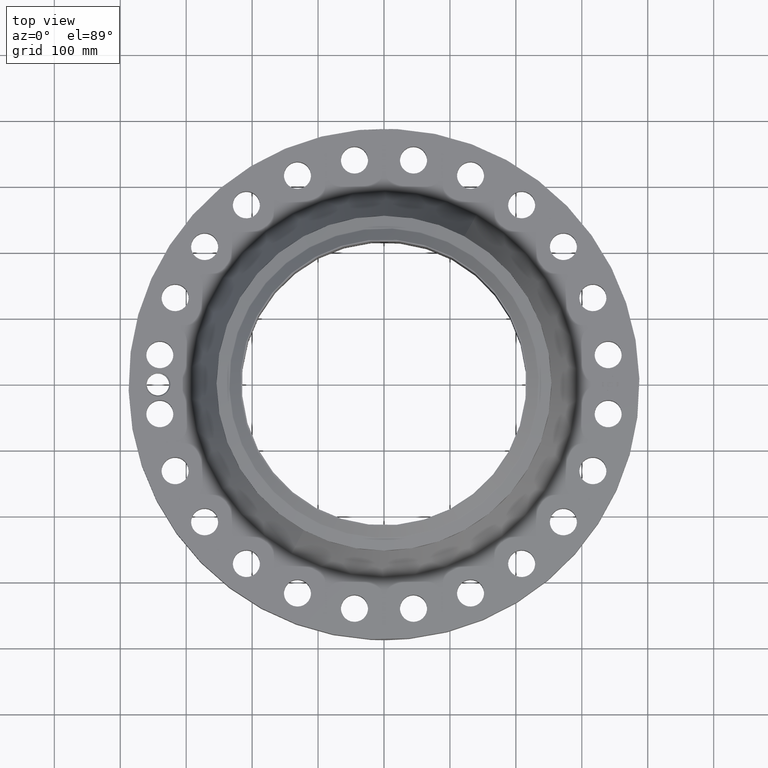
[diagram: clean part render]
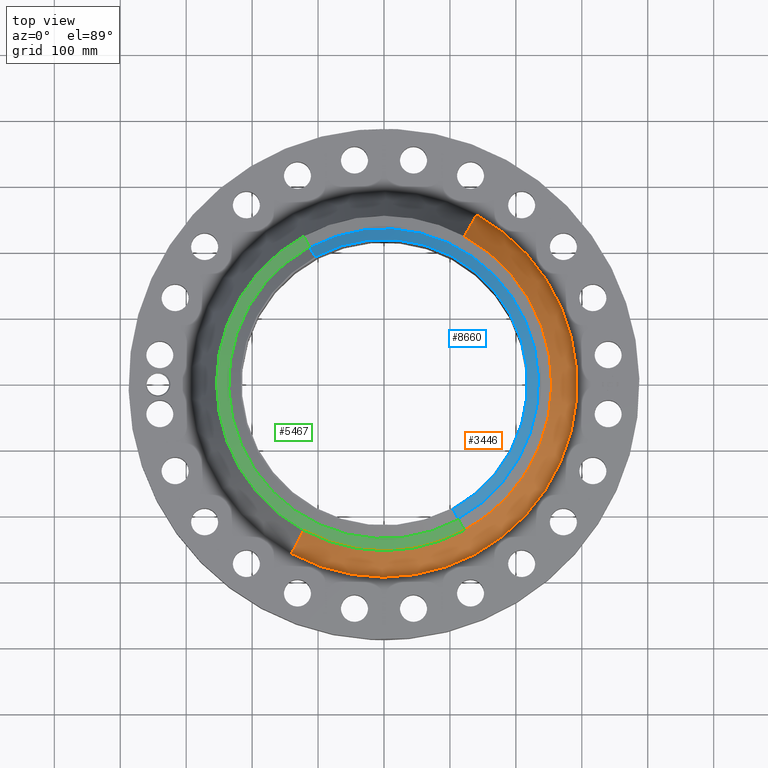
[diagram: same view with three faces highlighted in distinct colors, each labeled with its STEP entity id]
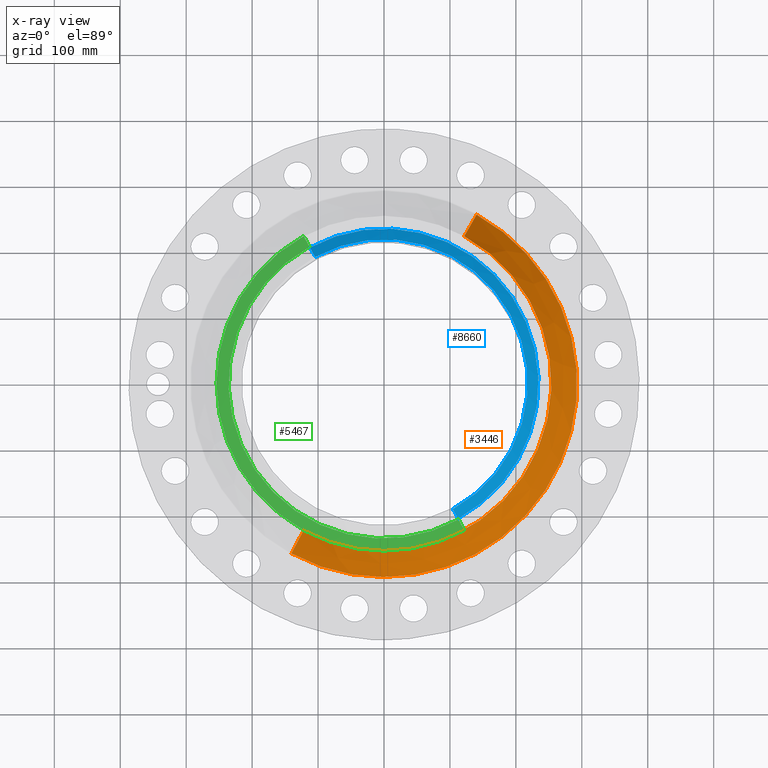
[diagram: x-ray of the same camera — body ghosted, the three highlighted faces saturated]
A machine part, top view with three faces highlighted in distinct colors.
The next image is the same camera in x-ray (body ghosted, the three faces saturated) — at least one of them is partly hidden behind the body in this view.
Their STEP definitions:

[orange] entity #3446 — the highlighted conical surface has half-angle 27.572 deg.
#2798=AXIS2_PLACEMENT_3D('Circle Axis2P3D',#2796,#2797,$) ;
#3419=AXIS2_PLACEMENT_3D('Cone Axis2P3D',#3416,#3417,#3418) ;
#3430=AXIS2_PLACEMENT_3D('Circle Axis2P3D',#3428,#3429,$) ;
#2793=CARTESIAN_POINT('Vertex',(5.52602334711,10.1153178868,3.06445735824)) ;
#2796=CARTESIAN_POINT('Axis2P3D Location',(0.,0.,3.06445735824)) ;
#2800=CARTESIAN_POINT('Vertex',(-5.52602334711,-10.1153178868,3.06445735824)) ;
#3416=CARTESIAN_POINT('Axis2P3D Location',(0.,0.,5.98762188478)) ;
#3421=CARTESIAN_POINT('Line Origine',(5.16013936659,9.44557175286,4.52603962151)) ;
#3425=CARTESIAN_POINT('Vertex',(4.79425538606,8.77582561894,5.98762188478)) ;
#3428=CARTESIAN_POINT('Axis2P3D Location',(0.,0.,5.98762188478)) ;
#3432=CARTESIAN_POINT('Vertex',(-4.79425538606,-8.77582561894,5.98762188478)) ;
#3435=CARTESIAN_POINT('Line Origine',(-5.16013936659,-9.44557175286,4.52603962151)) ;
#2797=DIRECTION('Axis2P3D Direction',(0.,0.,-0.0393700787402)) ;
#3417=DIRECTION('Axis2P3D Direction',(0.,0.,-0.0393700787402)) ;
#3418=DIRECTION('Axis2P3D XDirection',(-0.0188750212049,-0.0345504945626,0.)) ;
#3422=DIRECTION('Vector Direction',(0.00873640451065,0.0159918811887,-0.0348989695017)) ;
#3429=DIRECTION('Axis2P3D Direction',(0.,0.,-0.0393700787402)) ;
#3436=DIRECTION('Vector Direction',(-0.00873640451065,-0.0159918811887,-0.0348989695017)) ;
#3423=VECTOR('Line Direction',#3422,0.0393700787402) ;
#3437=VECTOR('Line Direction',#3436,0.0393700787402) ;
#3441=ORIENTED_EDGE('',*,*,#2802,.F.) ;
#3442=ORIENTED_EDGE('',*,*,#3427,.T.) ;
#3443=ORIENTED_EDGE('',*,*,#3434,.T.) ;
#3444=ORIENTED_EDGE('',*,*,#3439,.F.) ;
#3446=ADVANCED_FACE('PartBody',(#3445),#3420,.T.) ;
#2799=CIRCLE('generated circle',#2798,11.526343305) ;
#3431=CIRCLE('generated circle',#3430,10.) ;
#3420=CONICAL_SURFACE('Cone',#3419,10.,0.481213663027) ;
#2802=EDGE_CURVE('',#2794,#2801,#2799,.T.) ;
#3427=EDGE_CURVE('',#2794,#3426,#3424,.F.) ;
#3434=EDGE_CURVE('',#3426,#3433,#3431,.T.) ;
#3439=EDGE_CURVE('',#2801,#3433,#3438,.F.) ;
#3440=EDGE_LOOP('',(#3441,#3442,#3443,#3444)) ;
#3445=FACE_OUTER_BOUND('',#3440,.T.) ;
#3424=LINE('Line',#3421,#3423) ;
#3438=LINE('Line',#3435,#3437) ;
#2794=VERTEX_POINT('',#2793) ;
#2801=VERTEX_POINT('',#2800) ;
#3426=VERTEX_POINT('',#3425) ;
#3433=VERTEX_POINT('',#3432) ;

[blue] entity #8660 — the highlighted conical surface has half-angle 52.5 deg.
#5061=AXIS2_PLACEMENT_3D('Circle Axis2P3D',#5059,#5060,$) ;
#8621=AXIS2_PLACEMENT_3D('Cone Axis2P3D',#8618,#8619,#8620) ;
#8651=AXIS2_PLACEMENT_3D('Circle Axis2P3D',#8649,#8650,$) ;
#5059=CARTESIAN_POINT('Axis2P3D Location',(0.,0.,6.87000000003)) ;
#5063=CARTESIAN_POINT('Vertex',(4.11286712056,-7.52855276522,6.87000000003)) ;
#5065=CARTESIAN_POINT('Vertex',(-4.11286712056,7.52855276522,6.87000000003)) ;
#8618=CARTESIAN_POINT('Axis2P3D Location',(0.,0.,6.87000000003)) ;
#8623=CARTESIAN_POINT('Line Origine',(-4.26780842311,7.81217091713,6.62201437259)) ;
#8627=CARTESIAN_POINT('Vertex',(-4.42274972566,8.09578906903,6.37402874516)) ;
#8634=CARTESIAN_POINT('Vertex',(4.42274972566,-8.09578906903,6.37402874516)) ;
#8637=CARTESIAN_POINT('Line Origine',(4.26780842311,-7.81217091713,6.62201437259)) ;
#8649=CARTESIAN_POINT('Axis2P3D Location',(0.,0.,6.37402874516)) ;
#5060=DIRECTION('Axis2P3D Direction',(0.,0.,-0.0393700787402)) ;
#8619=DIRECTION('Axis2P3D Direction',(-0.,-0.,-0.0393700787402)) ;
#8620=DIRECTION('Axis2P3D XDirection',(-0.0188750212049,0.0345504945626,0.)) ;
#8624=DIRECTION('Vector Direction',(-0.014974561121,0.02741075027,-0.023966985394)) ;
#8638=DIRECTION('Vector Direction',(0.014974561121,-0.02741075027,-0.023966985394)) ;
#8650=DIRECTION('Axis2P3D Direction',(0.,0.,-0.0393700787402)) ;
#8625=VECTOR('Line Direction',#8624,0.0393700787402) ;
#8639=VECTOR('Line Direction',#8638,0.0393700787402) ;
#8655=ORIENTED_EDGE('',*,*,#5067,.F.) ;
#8656=ORIENTED_EDGE('',*,*,#8641,.T.) ;
#8657=ORIENTED_EDGE('',*,*,#8653,.T.) ;
#8658=ORIENTED_EDGE('',*,*,#8629,.F.) ;
#8660=ADVANCED_FACE('PartBody',(#8659),#8622,.T.) ;
#5062=CIRCLE('generated circle',#5061,8.57874015751) ;
#8652=CIRCLE('generated circle',#8651,9.22510248106) ;
#8622=CONICAL_SURFACE('Cone',#8621,8.57874015751,0.916297857297) ;
#5067=EDGE_CURVE('',#5064,#5066,#5062,.F.) ;
#8629=EDGE_CURVE('',#5066,#8628,#8626,.T.) ;
#8641=EDGE_CURVE('',#5064,#8635,#8640,.T.) ;
#8653=EDGE_CURVE('',#8635,#8628,#8652,.F.) ;
#8654=EDGE_LOOP('',(#8655,#8656,#8657,#8658)) ;
#8659=FACE_OUTER_BOUND('',#8654,.T.) ;
#8626=LINE('Line',#8623,#8625) ;
#8640=LINE('Line',#8637,#8639) ;
#5064=VERTEX_POINT('',#5063) ;
#5066=VERTEX_POINT('',#5065) ;
#8628=VERTEX_POINT('',#8627) ;
#8635=VERTEX_POINT('',#8634) ;

[green] entity #5467 — the highlighted conical surface has half-angle 80 deg.
#4255=AXIS2_PLACEMENT_3D('Circle Axis2P3D',#4253,#4254,$) ;
#4268=AXIS2_PLACEMENT_3D('Circle Axis2P3D',#4266,#4267,$) ;
#5426=AXIS2_PLACEMENT_3D('Cone Axis2P3D',#5423,#5424,#5425) ;
#5457=AXIS2_PLACEMENT_3D('Circle Axis2P3D',#5455,#5456,$) ;
#4236=CARTESIAN_POINT('Vertex',(-4.79425538606,-8.77582561894,6.22384235722)) ;
#4250=CARTESIAN_POINT('Vertex',(4.79425538606,-8.77582561894,6.22384235722)) ;
#4253=CARTESIAN_POINT('Axis2P3D Location',(0.,0.,6.22384235722)) ;
#4266=CARTESIAN_POINT('Axis2P3D Location',(0.,0.,6.22384235722)) ;
#4270=CARTESIAN_POINT('Vertex',(-4.79425538606,8.77582561894,6.22384235722)) ;
#5423=CARTESIAN_POINT('Axis2P3D Location',(0.,0.,6.35141601924)) ;
#5428=CARTESIAN_POINT('Line Origine',(-4.62082171363,8.45835741102,6.28762918823)) ;
#5432=CARTESIAN_POINT('Vertex',(-4.4473880412,8.14088920311,6.35141601924)) ;
#5439=CARTESIAN_POINT('Vertex',(4.4473880412,-8.14088920311,6.35141601924)) ;
#5442=CARTESIAN_POINT('Line Origine',(4.62082171363,-8.45835741102,6.28762918823)) ;
#5455=CARTESIAN_POINT('Axis2P3D Location',(0.,0.,6.35141601924)) ;
#4254=DIRECTION('Axis2P3D Direction',(0.,0.,-0.0393700787402)) ;
#4267=DIRECTION('Axis2P3D Direction',(0.,0.,-0.0393700787402)) ;
#5424=DIRECTION('Axis2P3D Direction',(-0.,-0.,-0.0393700787402)) ;
#5425=DIRECTION('Axis2P3D XDirection',(0.0188750212049,-0.0345504945626,0.)) ;
#5429=DIRECTION('Vector Direction',(-0.0185882672208,0.0340255949157,-0.00683654242783)) ;
#5443=DIRECTION('Vector Direction',(0.0185882672208,-0.0340255949157,-0.00683654242783)) ;
#5456=DIRECTION('Axis2P3D Direction',(0.,0.,-0.0393700787402)) ;
#5430=VECTOR('Line Direction',#5429,0.0393700787402) ;
#5444=VECTOR('Line Direction',#5443,0.0393700787402) ;
#5461=ORIENTED_EDGE('',*,*,#5446,.F.) ;
#5462=ORIENTED_EDGE('',*,*,#5459,.F.) ;
#5463=ORIENTED_EDGE('',*,*,#5434,.T.) ;
#5464=ORIENTED_EDGE('',*,*,#4272,.T.) ;
#5465=ORIENTED_EDGE('',*,*,#4257,.F.) ;
#5467=ADVANCED_FACE('PartBody',(#5466),#5427,.T.) ;
#4256=CIRCLE('generated circle',#4255,10.) ;
#4269=CIRCLE('generated circle',#4268,10.) ;
#5458=CIRCLE('generated circle',#5457,9.27649380996) ;
#5427=CONICAL_SURFACE('Cone',#5426,9.27649380996,1.3962634016) ;
#4257=EDGE_CURVE('',#4251,#4237,#4256,.T.) ;
#4272=EDGE_CURVE('',#4271,#4237,#4269,.F.) ;
#5434=EDGE_CURVE('',#5433,#4271,#5431,.T.) ;
#5446=EDGE_CURVE('',#5440,#4251,#5445,.T.) ;
#5459=EDGE_CURVE('',#5433,#5440,#5458,.F.) ;
#5460=EDGE_LOOP('',(#5461,#5462,#5463,#5464,#5465)) ;
#5466=FACE_OUTER_BOUND('',#5460,.T.) ;
#5431=LINE('Line',#5428,#5430) ;
#5445=LINE('Line',#5442,#5444) ;
#4237=VERTEX_POINT('',#4236) ;
#4251=VERTEX_POINT('',#4250) ;
#4271=VERTEX_POINT('',#4270) ;
#5433=VERTEX_POINT('',#5432) ;
#5440=VERTEX_POINT('',#5439) ;